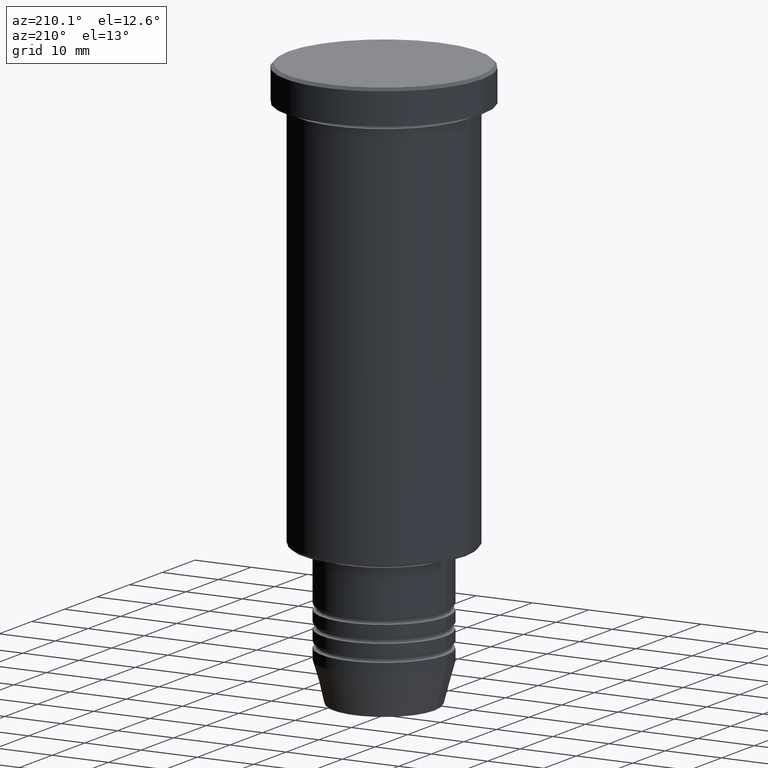
[diagram: clean part render]
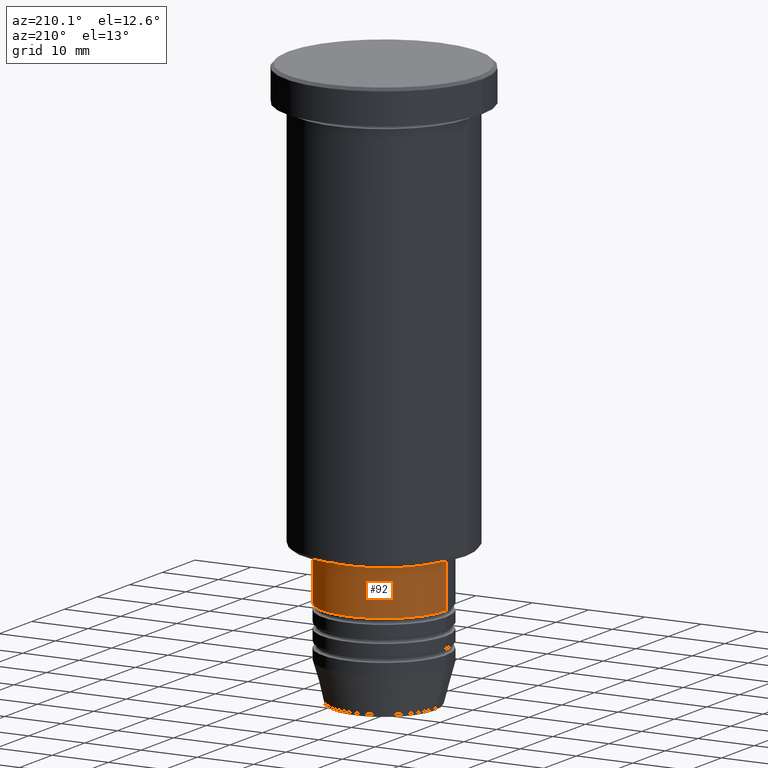
[diagram: same view with one face highlighted and labeled with its STEP entity id]
A machine part, auxiliary view. The second image highlights one B-rep face of the part: STEP entity #92.
In plain terms, the highlighted cylindrical surface (partial cylindrical patch) has radius 11 mm, axis along (-0, -0, 1).
Its self-contained STEP definition (entity closure, byte-faithful):
#26 = CARTESIAN_POINT ( 'NONE',  ( 11.00000000000000000, 0.000000000000000000, -84.99999999999997158 ) ) ;
#42 = CARTESIAN_POINT ( 'NONE',  ( 0.000000000000000000, 0.000000000000000000, -76.99999999999997158 ) ) ;
#92 = ADVANCED_FACE ( 'NONE', ( #456 ), #93, .T. ) ;
#93 = CYLINDRICAL_SURFACE ( 'NONE', #329, 11.00000000000000000 ) ;
#129 = LINE ( 'NONE', #583, #726 ) ;
#132 = VERTEX_POINT ( 'NONE', #678 ) ;
#143 = CARTESIAN_POINT ( 'NONE',  ( 11.00000000000000000, 0.000000000000000000, 0.000000000000000000 ) ) ;
#196 = CIRCLE ( 'NONE', #502, 11.00000000000000000 ) ;
#201 = EDGE_CURVE ( 'NONE', #643, #132, #129, .T. ) ;
#213 = DIRECTION ( 'NONE',  ( -0.000000000000000000, -0.000000000000000000, 1.000000000000000000 ) ) ;
#217 = CARTESIAN_POINT ( 'NONE',  ( -11.00000000000000000, 1.347111479062088405E-15, -84.99999999999997158 ) ) ;
#233 = ORIENTED_EDGE ( 'NONE', *, *, #990, .F. ) ;
#264 = EDGE_CURVE ( 'NONE', #1118, #132, #196, .T. ) ;
#278 = VERTEX_POINT ( 'NONE', #26 ) ;
#280 = DIRECTION ( 'NONE',  ( -0.000000000000000000, -0.000000000000000000, 1.000000000000000000 ) ) ;
#304 = EDGE_CURVE ( 'NONE', #278, #643, #594, .T. ) ;
#305 = DIRECTION ( 'NONE',  ( 1.000000000000000000, 0.000000000000000000, 0.000000000000000000 ) ) ;
#329 = AXIS2_PLACEMENT_3D ( 'NONE', #730, #280, #739 ) ;
#337 = DIRECTION ( 'NONE',  ( -0.000000000000000000, -0.000000000000000000, 1.000000000000000000 ) ) ;
#362 = ORIENTED_EDGE ( 'NONE', *, *, #304, .T. ) ;
#388 = ORIENTED_EDGE ( 'NONE', *, *, #264, .F. ) ;
#456 = FACE_OUTER_BOUND ( 'NONE', #683, .T. ) ;
#462 = AXIS2_PLACEMENT_3D ( 'NONE', #525, #337, #868 ) ;
#502 = AXIS2_PLACEMENT_3D ( 'NONE', #42, #1140, #305 ) ;
#525 = CARTESIAN_POINT ( 'NONE',  ( 0.000000000000000000, 0.000000000000000000, -84.99999999999997158 ) ) ;
#583 = CARTESIAN_POINT ( 'NONE',  ( -11.00000000000000000, 1.347111479062088405E-15, 0.000000000000000000 ) ) ;
#594 = CIRCLE ( 'NONE', #462, 11.00000000000000000 ) ;
#643 = VERTEX_POINT ( 'NONE', #217 ) ;
#678 = CARTESIAN_POINT ( 'NONE',  ( -11.00000000000000000, 1.347111479062088405E-15, -76.99999999999997158 ) ) ;
#683 = EDGE_LOOP ( 'NONE', ( #362, #1041, #388, #233 ) ) ;
#726 = VECTOR ( 'NONE', #763, 1000.000000000000000 ) ;
#730 = CARTESIAN_POINT ( 'NONE',  ( 0.000000000000000000, 0.000000000000000000, 0.000000000000000000 ) ) ;
#739 = DIRECTION ( 'NONE',  ( 1.000000000000000000, 0.000000000000000000, 0.000000000000000000 ) ) ;
#763 = DIRECTION ( 'NONE',  ( -0.000000000000000000, -0.000000000000000000, 1.000000000000000000 ) ) ;
#868 = DIRECTION ( 'NONE',  ( 1.000000000000000000, 0.000000000000000000, 0.000000000000000000 ) ) ;
#966 = LINE ( 'NONE', #143, #1124 ) ;
#990 = EDGE_CURVE ( 'NONE', #278, #1118, #966, .T. ) ;
#992 = CARTESIAN_POINT ( 'NONE',  ( 11.00000000000000000, 0.000000000000000000, -76.99999999999997158 ) ) ;
#1041 = ORIENTED_EDGE ( 'NONE', *, *, #201, .T. ) ;
#1118 = VERTEX_POINT ( 'NONE', #992 ) ;
#1124 = VECTOR ( 'NONE', #213, 1000.000000000000000 ) ;
#1140 = DIRECTION ( 'NONE',  ( -0.000000000000000000, -0.000000000000000000, 1.000000000000000000 ) ) ;